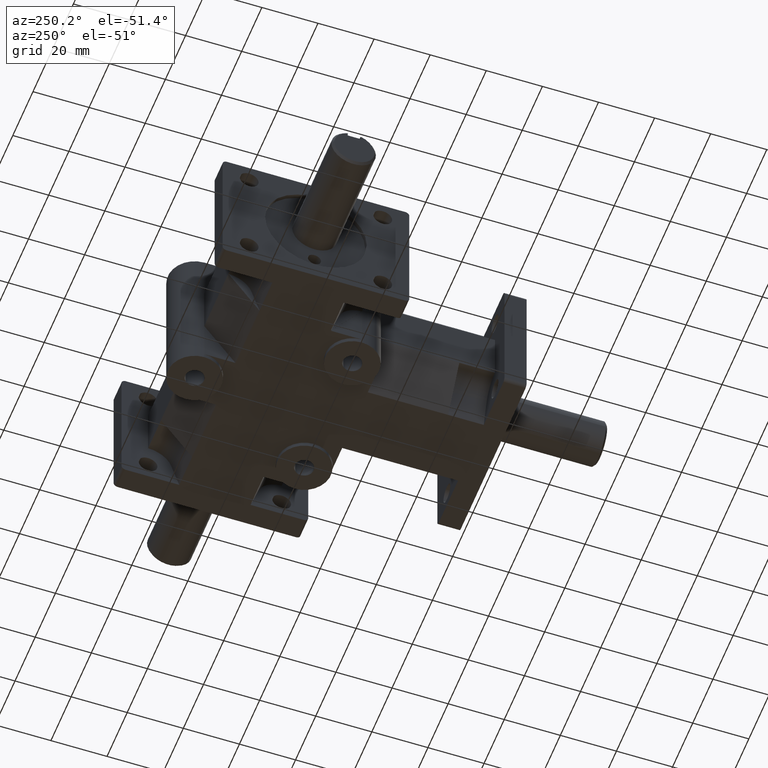
[diagram: clean part render]
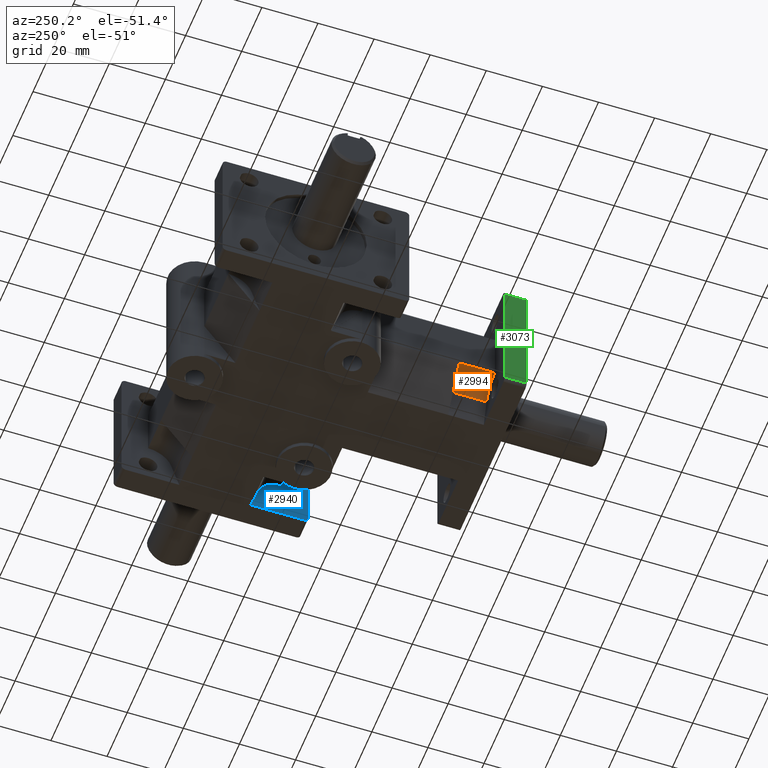
[diagram: same view with three faces highlighted in distinct colors, each labeled with its STEP entity id]
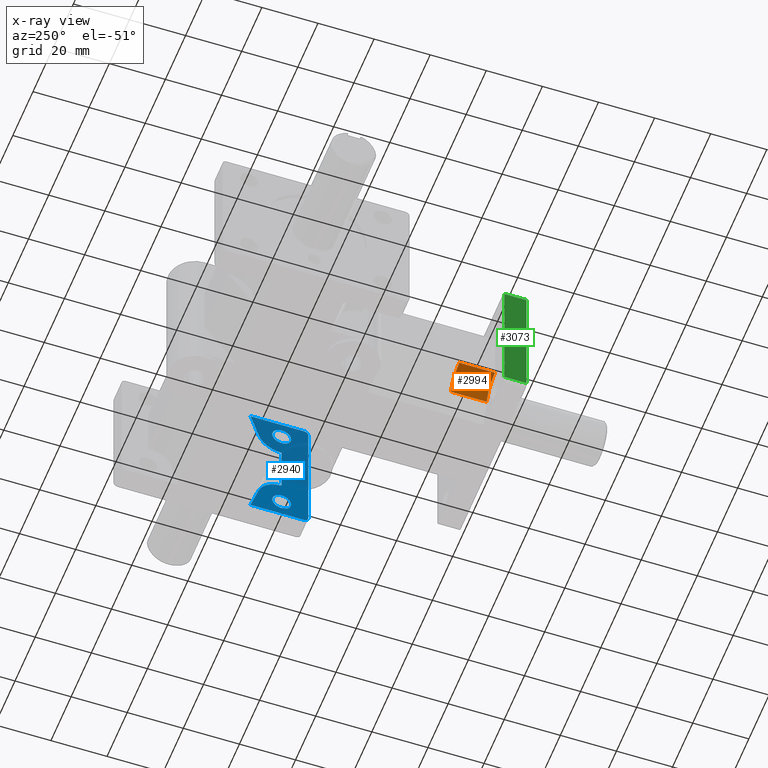
[diagram: x-ray of the same camera — body ghosted, the three highlighted faces saturated]
A machine part, auxiliary view with three faces highlighted in distinct colors.
The next image is the same camera in x-ray (body ghosted, the three faces saturated) — at least one of them is partly hidden behind the body in this view.
Their STEP definitions:

[orange] entity #2994 — the highlighted cylindrical surface (edge-blend (fillet) strip) has radius 8.636 mm, axis along (0, 1, 0).
#264=FACE_OUTER_BOUND('',#455,.T.);
#455=EDGE_LOOP('',(#2382,#2383,#2384,#2385));
#735=LINE('',#4819,#1031);
#736=LINE('',#4822,#1032);
#1031=VECTOR('',#3906,1.);
#1032=VECTOR('',#3909,1.);
#1210=CIRCLE('',#3184,0.34);
#1235=CIRCLE('',#3261,0.34);
#1385=VERTEX_POINT('',#4544);
#1386=VERTEX_POINT('',#4546);
#1470=VERTEX_POINT('',#4818);
#1471=VERTEX_POINT('',#4820);
#1681=EDGE_CURVE('',#1385,#1386,#1210,.T.);
#1817=EDGE_CURVE('',#1470,#1385,#735,.T.);
#1818=EDGE_CURVE('',#1471,#1470,#1235,.T.);
#1819=EDGE_CURVE('',#1386,#1471,#736,.T.);
#2382=ORIENTED_EDGE('',*,*,#1817,.F.);
#2383=ORIENTED_EDGE('',*,*,#1818,.F.);
#2384=ORIENTED_EDGE('',*,*,#1819,.F.);
#2385=ORIENTED_EDGE('',*,*,#1681,.F.);
#2885=CYLINDRICAL_SURFACE('',#3260,0.34);
#2994=ADVANCED_FACE('',(#264),#2885,.F.);
#3184=AXIS2_PLACEMENT_3D('',#4547,#3641,#3642);
#3260=AXIS2_PLACEMENT_3D('',#4817,#3904,#3905);
#3261=AXIS2_PLACEMENT_3D('',#4821,#3907,#3908);
#3641=DIRECTION('center_axis',(0.,1.,0.));
#3642=DIRECTION('ref_axis',(1.,0.,0.));
#3904=DIRECTION('center_axis',(0.,1.,0.));
#3905=DIRECTION('ref_axis',(1.,0.,0.));
#3906=DIRECTION('',(0.,-1.,0.));
#3907=DIRECTION('center_axis',(0.,-1.,0.));
#3908=DIRECTION('ref_axis',(1.,0.,0.));
#3909=DIRECTION('',(0.,1.,0.));
#4544=CARTESIAN_POINT('',(-0.934728518784819,0.31,-0.347511295934889));
#4546=CARTESIAN_POINT('',(-0.613813143045981,0.31,-0.583448000330467));
#4547=CARTESIAN_POINT('Origin',(-0.9375,0.31,-0.6875));
#4817=CARTESIAN_POINT('Origin',(-0.9375,0.31,-0.6875));
#4818=CARTESIAN_POINT('',(-0.934728518784819,0.81,-0.347511295934889));
#4819=CARTESIAN_POINT('',(-0.934728518784819,0.31,-0.347511295934889));
#4820=CARTESIAN_POINT('',(-0.613813143045981,0.81,-0.583448000330467));
#4821=CARTESIAN_POINT('Origin',(-0.9375,0.81,-0.6875));
#4822=CARTESIAN_POINT('',(-0.613813143045981,0.31,-0.583448000330467));

[blue] entity #2940 — the highlighted planar face has unit normal (-1, 0, 0).
#36=FACE_BOUND('',#391,.T.);
#37=FACE_BOUND('',#392,.T.);
#80=PLANE('',#3172);
#210=FACE_OUTER_BOUND('',#390,.T.);
#390=EDGE_LOOP('',(#2110,#2111,#2112,#2113,#2114,#2115,#2116,#2117,#2118,
#2119,#2120,#2121));
#391=EDGE_LOOP('',(#2122));
#392=EDGE_LOOP('',(#2123));
#601=LINE('',#4485,#897);
#603=LINE('',#4489,#899);
#604=LINE('',#4491,#900);
#605=LINE('',#4495,#901);
#606=LINE('',#4497,#902);
#607=LINE('',#4499,#903);
#608=LINE('',#4503,#904);
#609=LINE('',#4504,#905);
#897=VECTOR('',#3594,1.);
#899=VECTOR('',#3598,1.);
#900=VECTOR('',#3599,1.);
#901=VECTOR('',#3602,1.);
#902=VECTOR('',#3603,1.);
#903=VECTOR('',#3604,1.);
#904=VECTOR('',#3607,0.999999999999999);
#905=VECTOR('',#3608,1.);
#1174=CIRCLE('',#3132,0.06);
#1180=CIRCLE('',#3141,0.06);
#1201=CIRCLE('',#3173,0.34);
#1202=CIRCLE('',#3174,0.34);
#1203=CIRCLE('',#3175,0.1325);
#1204=CIRCLE('',#3176,0.1325);
#1304=VERTEX_POINT('',#4357);
#1305=VERTEX_POINT('',#4359);
#1316=VERTEX_POINT('',#4384);
#1317=VERTEX_POINT('',#4386);
#1360=VERTEX_POINT('',#4488);
#1361=VERTEX_POINT('',#4490);
#1362=VERTEX_POINT('',#4492);
#1363=VERTEX_POINT('',#4494);
#1364=VERTEX_POINT('',#4496);
#1365=VERTEX_POINT('',#4498);
#1366=VERTEX_POINT('',#4500);
#1367=VERTEX_POINT('',#4502);
#1368=VERTEX_POINT('',#4505);
#1369=VERTEX_POINT('',#4507);
#1591=EDGE_CURVE('',#1304,#1305,#1174,.T.);
#1603=EDGE_CURVE('',#1316,#1317,#1180,.T.);
#1649=EDGE_CURVE('',#1305,#1316,#601,.T.);
#1651=EDGE_CURVE('',#1304,#1360,#603,.T.);
#1652=EDGE_CURVE('',#1361,#1360,#604,.T.);
#1653=EDGE_CURVE('',#1362,#1361,#1201,.T.);
#1654=EDGE_CURVE('',#1363,#1362,#605,.F.);
#1655=EDGE_CURVE('',#1363,#1364,#606,.T.);
#1656=EDGE_CURVE('',#1365,#1364,#607,.F.);
#1657=EDGE_CURVE('',#1365,#1366,#1202,.T.);
#1658=EDGE_CURVE('',#1366,#1367,#608,.T.);
#1659=EDGE_CURVE('',#1367,#1317,#609,.T.);
#1660=EDGE_CURVE('',#1368,#1368,#1203,.T.);
#1661=EDGE_CURVE('',#1369,#1369,#1204,.T.);
#2110=ORIENTED_EDGE('',*,*,#1591,.F.);
#2111=ORIENTED_EDGE('',*,*,#1651,.T.);
#2112=ORIENTED_EDGE('',*,*,#1652,.F.);
#2113=ORIENTED_EDGE('',*,*,#1653,.F.);
#2114=ORIENTED_EDGE('',*,*,#1654,.F.);
#2115=ORIENTED_EDGE('',*,*,#1655,.T.);
#2116=ORIENTED_EDGE('',*,*,#1656,.F.);
#2117=ORIENTED_EDGE('',*,*,#1657,.T.);
#2118=ORIENTED_EDGE('',*,*,#1658,.T.);
#2119=ORIENTED_EDGE('',*,*,#1659,.T.);
#2120=ORIENTED_EDGE('',*,*,#1603,.F.);
#2121=ORIENTED_EDGE('',*,*,#1649,.F.);
#2122=ORIENTED_EDGE('',*,*,#1660,.T.);
#2123=ORIENTED_EDGE('',*,*,#1661,.T.);
#2940=ADVANCED_FACE('',(#210,#36,#37),#80,.T.);
#3132=AXIS2_PLACEMENT_3D('',#4360,#3483,#3484);
#3141=AXIS2_PLACEMENT_3D('',#4387,#3507,#3508);
#3172=AXIS2_PLACEMENT_3D('',#4487,#3596,#3597);
#3173=AXIS2_PLACEMENT_3D('',#4493,#3600,#3601);
#3174=AXIS2_PLACEMENT_3D('',#4501,#3605,#3606);
#3175=AXIS2_PLACEMENT_3D('',#4506,#3609,#3610);
#3176=AXIS2_PLACEMENT_3D('',#4508,#3611,#3612);
#3483=DIRECTION('center_axis',(1.,0.,0.));
#3484=DIRECTION('ref_axis',(0.,-0.707106781186545,0.70710678118655));
#3507=DIRECTION('center_axis',(1.,0.,0.));
#3508=DIRECTION('ref_axis',(0.,-0.707106781186545,-0.70710678118655));
#3594=DIRECTION('',(0.,0.,-1.));
#3596=DIRECTION('center_axis',(-1.,0.,0.));
#3597=DIRECTION('ref_axis',(0.,1.,0.));
#3598=DIRECTION('',(0.,1.,0.));
#3599=DIRECTION('',(1.8738638224005E-17,0.306035293145686,0.95202016751182));
#3600=DIRECTION('center_axis',(1.,-6.12303176911189E-17,0.));
#3601=DIRECTION('ref_axis',(6.12303176911189E-17,1.,0.));
#3602=DIRECTION('',(0.,-0.59319903804985,-0.805055837353368));
#3603=DIRECTION('',(0.,0.,-1.));
#3604=DIRECTION('',(0.,0.59319903804985,-0.805055837353368));
#3605=DIRECTION('center_axis',(-1.,6.12303176911189E-17,0.));
#3606=DIRECTION('ref_axis',(6.12303176911189E-17,1.,0.));
#3607=DIRECTION('',(1.8738638224005E-17,0.306035293145685,-0.952020167511821));
#3608=DIRECTION('',(0.,-1.,0.));
#3609=DIRECTION('center_axis',(1.,0.,0.));
#3610=DIRECTION('ref_axis',(0.,1.,0.));
#3611=DIRECTION('center_axis',(1.,0.,0.));
#3612=DIRECTION('ref_axis',(0.,1.,0.));
#4357=CARTESIAN_POINT('',(1.815,2.,0.9375));
#4359=CARTESIAN_POINT('',(1.815,1.94,0.8775));
#4360=CARTESIAN_POINT('Origin',(1.815,2.,0.8775));
#4384=CARTESIAN_POINT('',(1.815,1.94,-0.8775));
#4386=CARTESIAN_POINT('',(1.815,2.,-0.9375));
#4387=CARTESIAN_POINT('Origin',(1.815,2.,-0.8775));
#4485=CARTESIAN_POINT('',(1.815,1.94,0.));
#4487=CARTESIAN_POINT('Origin',(1.815,2.3125,0.));
#4488=CARTESIAN_POINT('',(1.815,2.75,0.9375));
#4489=CARTESIAN_POINT('',(1.815,2.36614507691196,0.9375));
#4490=CARTESIAN_POINT('',(1.815,2.63618685695402,0.583448000330467));
#4491=CARTESIAN_POINT('',(1.815,2.63618685695402,0.583448000330467));
#4492=CARTESIAN_POINT('',(1.815,2.31527148121518,0.347511295934889));
#4493=CARTESIAN_POINT('Origin',(1.815,2.3125,0.6875));
#4494=CARTESIAN_POINT('',(1.815,2.3125,0.34375));
#4495=CARTESIAN_POINT('',(1.815,2.33979465888689,0.380792751346499));
#4496=CARTESIAN_POINT('',(1.815,2.3125,-0.34375));
#4497=CARTESIAN_POINT('',(1.815,2.3125,0.));
#4498=CARTESIAN_POINT('',(1.815,2.31527148121518,-0.347511295934889));
#4499=CARTESIAN_POINT('',(1.815,2.33979465888689,-0.380792751346499));
#4500=CARTESIAN_POINT('',(1.815,2.63618685695402,-0.583448000330467));
#4501=CARTESIAN_POINT('Origin',(1.815,2.3125,-0.6875));
#4502=CARTESIAN_POINT('',(1.815,2.75,-0.9375));
#4503=CARTESIAN_POINT('',(1.815,2.63618685695402,-0.583448000330467));
#4504=CARTESIAN_POINT('',(1.815,1.94,-0.9375));
#4505=CARTESIAN_POINT('',(1.815,2.18,-0.6875));
#4506=CARTESIAN_POINT('Origin',(1.815,2.3125,-0.6875));
#4507=CARTESIAN_POINT('',(1.815,2.18,0.6875));
#4508=CARTESIAN_POINT('Origin',(1.815,2.3125,0.6875));

[green] entity #3073 — the highlighted planar face has unit normal (-1, 0, 0).
#174=PLANE('',#3385);
#343=FACE_OUTER_BOUND('',#551,.T.);
#551=EDGE_LOOP('',(#2827,#2828,#2829,#2830));
#581=LINE('',#4412,#877);
#584=LINE('',#4424,#880);
#618=LINE('',#4533,#914);
#854=LINE('',#5169,#1150);
#877=VECTOR('',#3530,1.);
#880=VECTOR('',#3541,1.);
#914=VECTOR('',#3633,1.);
#1150=VECTOR('',#4275,1.);
#1327=VERTEX_POINT('',#4409);
#1328=VERTEX_POINT('',#4411);
#1330=VERTEX_POINT('',#4417);
#1333=VERTEX_POINT('',#4422);
#1614=EDGE_CURVE('',#1327,#1328,#581,.T.);
#1620=EDGE_CURVE('',#1333,#1330,#584,.T.);
#1674=EDGE_CURVE('',#1333,#1328,#618,.T.);
#1988=EDGE_CURVE('',#1330,#1327,#854,.T.);
#2827=ORIENTED_EDGE('',*,*,#1614,.F.);
#2828=ORIENTED_EDGE('',*,*,#1988,.F.);
#2829=ORIENTED_EDGE('',*,*,#1620,.F.);
#2830=ORIENTED_EDGE('',*,*,#1674,.T.);
#3073=ADVANCED_FACE('',(#343),#174,.T.);
#3385=AXIS2_PLACEMENT_3D('',#5168,#4273,#4274);
#3530=DIRECTION('',(0.,1.,0.));
#3541=DIRECTION('',(0.,-1.,0.));
#3633=DIRECTION('',(0.,0.,-1.));
#4273=DIRECTION('center_axis',(-1.,0.,0.));
#4274=DIRECTION('ref_axis',(0.,1.,0.));
#4275=DIRECTION('',(0.,0.,-1.));
#4409=CARTESIAN_POINT('',(-1.31,0.,-0.8775));
#4411=CARTESIAN_POINT('',(-1.31,0.31,-0.8775));
#4412=CARTESIAN_POINT('',(-1.31,1.36489507691196,-0.8775));
#4417=CARTESIAN_POINT('',(-1.31,0.,0.8775));
#4422=CARTESIAN_POINT('',(-1.31,0.31,0.8775));
#4424=CARTESIAN_POINT('',(-1.31,1.36489507691196,0.8775));
#4533=CARTESIAN_POINT('',(-1.31,0.31,0.));
#5168=CARTESIAN_POINT('Origin',(-1.31,0.31,0.));
#5169=CARTESIAN_POINT('',(-1.31,0.,0.));